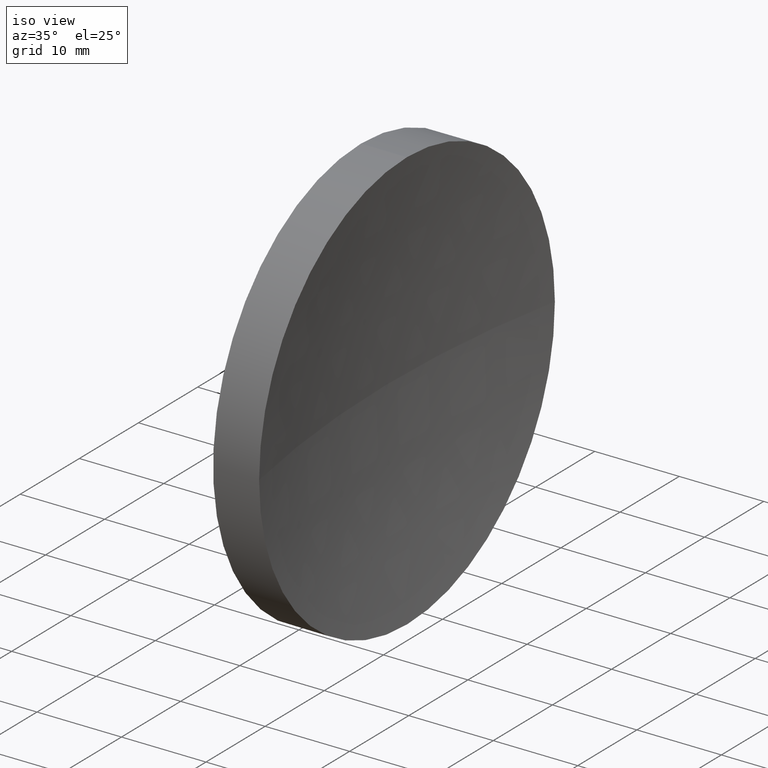
[diagram: clean part render]
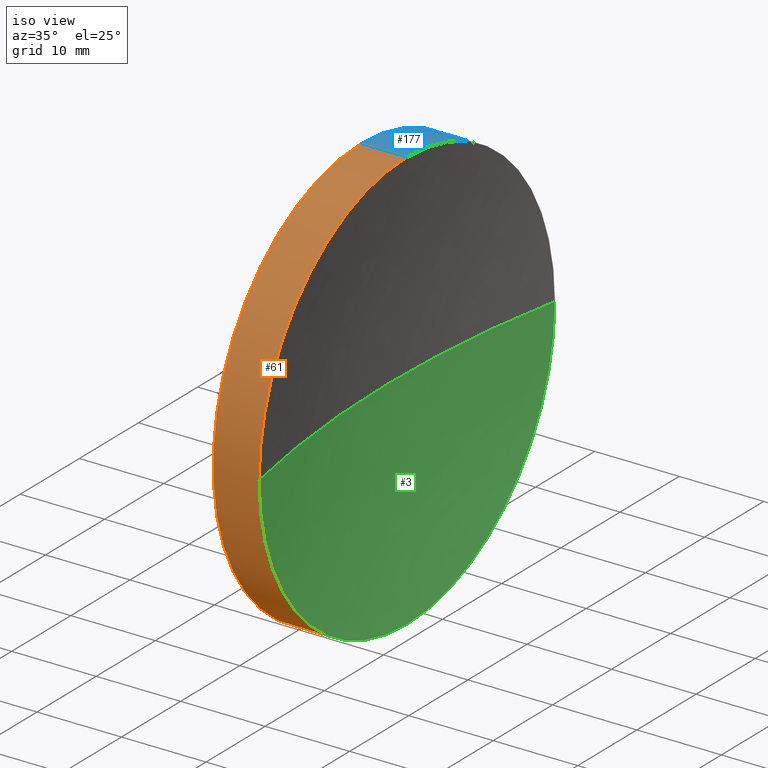
[diagram: same view with three faces highlighted in distinct colors, each labeled with its STEP entity id]
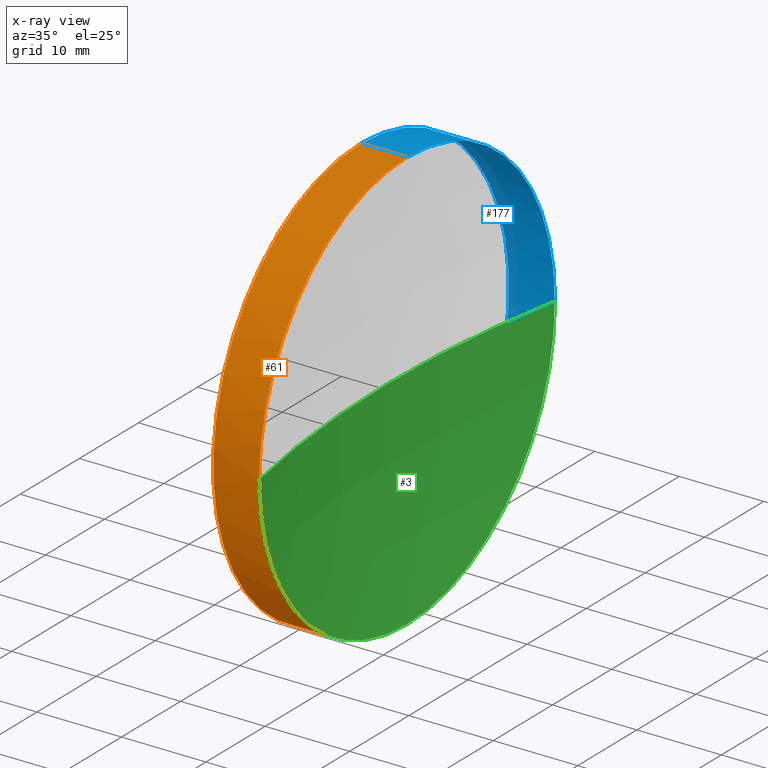
[diagram: x-ray of the same camera — body ghosted, the three highlighted faces saturated]
A machine part, iso view with three faces highlighted in distinct colors.
The next image is the same camera in x-ray (body ghosted, the three faces saturated) — at least one of them is partly hidden behind the body in this view.
Their STEP definitions:

[orange] entity #61 — the highlighted cylindrical surface (partial cylindrical patch) has radius 25 mm, axis along (-1, -0, -0).
#5 = EDGE_CURVE ( 'NONE', #178, #23, #133, .T. ) ;
#8 = FACE_OUTER_BOUND ( 'NONE', #156, .T. ) ;
#10 = CYLINDRICAL_SURFACE ( 'NONE', #149, 24.99999999999998600 ) ;
#13 = CARTESIAN_POINT ( 'NONE',  ( 113.7394371346435000, 65.15563045701519200, 24.99999999999999300 ) ) ;
#14 = ORIENTED_EDGE ( 'NONE', *, *, #129, .T. ) ;
#16 = DIRECTION ( 'NONE',  ( -1.000000000000000000, -0.0000000000000000000, -0.0000000000000000000 ) ) ;
#18 = AXIS2_PLACEMENT_3D ( 'NONE', #35, #63, #175 ) ;
#20 = CIRCLE ( 'NONE', #43, 24.99999999999998200 ) ;
#21 = EDGE_CURVE ( 'NONE', #163, #178, #144, .T. ) ;
#23 = VERTEX_POINT ( 'NONE', #13 ) ;
#31 = DIRECTION ( 'NONE',  ( 0.0000000000000000000, 0.0000000000000000000, 1.000000000000000000 ) ) ;
#33 = AXIS2_PLACEMENT_3D ( 'NONE', #138, #102, #137 ) ;
#35 = CARTESIAN_POINT ( 'NONE',  ( 119.1804718391806000, 65.15563045701519200, 0.0000000000000000000 ) ) ;
#43 = AXIS2_PLACEMENT_3D ( 'NONE', #107, #130, #31 ) ;
#44 = DIRECTION ( 'NONE',  ( 0.0000000000000000000, 0.0000000000000000000, 1.000000000000000000 ) ) ;
#46 = ORIENTED_EDGE ( 'NONE', *, *, #5, .F. ) ;
#49 = CARTESIAN_POINT ( 'NONE',  ( 105.6218371238301200, 65.15563045701519200, 24.99999999999998600 ) ) ;
#50 = CARTESIAN_POINT ( 'NONE',  ( 119.1804718391806000, 65.15563045701519200, -24.99999999999998200 ) ) ;
#51 = ORIENTED_EDGE ( 'NONE', *, *, #169, .T. ) ;
#53 = ORIENTED_EDGE ( 'NONE', *, *, #66, .T. ) ;
#61 = ADVANCED_FACE ( 'NONE', ( #8 ), #10, .T. ) ;
#63 = DIRECTION ( 'NONE',  ( -1.000000000000000000, -0.0000000000000000000, -0.0000000000000000000 ) ) ;
#66 = EDGE_CURVE ( 'NONE', #131, #23, #116, .T. ) ;
#73 = DIRECTION ( 'NONE',  ( -1.000000000000000000, -0.0000000000000000000, -0.0000000000000000000 ) ) ;
#81 = ORIENTED_EDGE ( 'NONE', *, *, #21, .F. ) ;
#83 = DIRECTION ( 'NONE',  ( -1.000000000000000000, -0.0000000000000000000, -0.0000000000000000000 ) ) ;
#88 = CARTESIAN_POINT ( 'NONE',  ( 113.7394371346435000, 65.15563045701519200, -24.99999999999999300 ) ) ;
#93 = VERTEX_POINT ( 'NONE', #152 ) ;
#102 = DIRECTION ( 'NONE',  ( -1.000000000000000000, -0.0000000000000000000, -0.0000000000000000000 ) ) ;
#107 = CARTESIAN_POINT ( 'NONE',  ( 119.1804718391806000, 65.15563045701519200, 0.0000000000000000000 ) ) ;
#116 = LINE ( 'NONE', #49, #121 ) ;
#121 = VECTOR ( 'NONE', #73, 1000.000000000000000 ) ;
#125 = VECTOR ( 'NONE', #83, 1000.000000000000000 ) ;
#129 = EDGE_CURVE ( 'NONE', #163, #93, #20, .T. ) ;
#130 = DIRECTION ( 'NONE',  ( -1.000000000000000000, -0.0000000000000000000, -0.0000000000000000000 ) ) ;
#131 = VERTEX_POINT ( 'NONE', #167 ) ;
#133 = CIRCLE ( 'NONE', #33, 24.99999999999999300 ) ;
#137 = DIRECTION ( 'NONE',  ( 0.0000000000000000000, 0.0000000000000000000, 1.000000000000000000 ) ) ;
#138 = CARTESIAN_POINT ( 'NONE',  ( 113.7394371346435000, 65.15563045701519200, 0.0000000000000000000 ) ) ;
#144 = LINE ( 'NONE', #153, #125 ) ;
#149 = AXIS2_PLACEMENT_3D ( 'NONE', #186, #16, #44 ) ;
#152 = CARTESIAN_POINT ( 'NONE',  ( 119.1804718391806000, 40.15563045701522800, 0.0000000000000000000 ) ) ;
#153 = CARTESIAN_POINT ( 'NONE',  ( 105.6218371238301200, 65.15563045701519200, -24.99999999999998600 ) ) ;
#156 = EDGE_LOOP ( 'NONE', ( #81, #14, #51, #53, #46 ) ) ;
#163 = VERTEX_POINT ( 'NONE', #50 ) ;
#164 = CIRCLE ( 'NONE', #18, 24.99999999999998200 ) ;
#167 = CARTESIAN_POINT ( 'NONE',  ( 119.1804718391806000, 65.15563045701519200, 24.99999999999998200 ) ) ;
#169 = EDGE_CURVE ( 'NONE', #93, #131, #164, .T. ) ;
#175 = DIRECTION ( 'NONE',  ( 0.0000000000000000000, 0.0000000000000000000, 1.000000000000000000 ) ) ;
#178 = VERTEX_POINT ( 'NONE', #88 ) ;
#186 = CARTESIAN_POINT ( 'NONE',  ( 105.6218371238301200, 65.15563045701519200, 0.0000000000000000000 ) ) ;

[blue] entity #177 — the highlighted cylindrical surface (partial cylindrical patch) has radius 25 mm, axis along (-1, -0, -0).
#2 = FACE_OUTER_BOUND ( 'NONE', #151, .T. ) ;
#7 = DIRECTION ( 'NONE',  ( -1.000000000000000000, -0.0000000000000000000, -0.0000000000000000000 ) ) ;
#13 = CARTESIAN_POINT ( 'NONE',  ( 113.7394371346435000, 65.15563045701519200, 24.99999999999999300 ) ) ;
#15 = DIRECTION ( 'NONE',  ( 0.0000000000000000000, 0.0000000000000000000, 1.000000000000000000 ) ) ;
#21 = EDGE_CURVE ( 'NONE', #163, #178, #144, .T. ) ;
#22 = CIRCLE ( 'NONE', #92, 24.99999999999998200 ) ;
#23 = VERTEX_POINT ( 'NONE', #13 ) ;
#26 = CARTESIAN_POINT ( 'NONE',  ( 119.1804718391806000, 65.15563045701519200, 0.0000000000000000000 ) ) ;
#28 = ORIENTED_EDGE ( 'NONE', *, *, #21, .T. ) ;
#32 = DIRECTION ( 'NONE',  ( 0.0000000000000000000, 0.0000000000000000000, 1.000000000000000000 ) ) ;
#37 = ORIENTED_EDGE ( 'NONE', *, *, #112, .T. ) ;
#49 = CARTESIAN_POINT ( 'NONE',  ( 105.6218371238301200, 65.15563045701519200, 24.99999999999998600 ) ) ;
#50 = CARTESIAN_POINT ( 'NONE',  ( 119.1804718391806000, 65.15563045701519200, -24.99999999999998200 ) ) ;
#52 = ORIENTED_EDGE ( 'NONE', *, *, #72, .T. ) ;
#59 = DIRECTION ( 'NONE',  ( -1.000000000000000000, -0.0000000000000000000, -0.0000000000000000000 ) ) ;
#64 = CARTESIAN_POINT ( 'NONE',  ( 119.1804718391806000, 65.15563045701519200, 0.0000000000000000000 ) ) ;
#66 = EDGE_CURVE ( 'NONE', #131, #23, #116, .T. ) ;
#72 = EDGE_CURVE ( 'NONE', #97, #163, #181, .T. ) ;
#73 = DIRECTION ( 'NONE',  ( -1.000000000000000000, -0.0000000000000000000, -0.0000000000000000000 ) ) ;
#74 = DIRECTION ( 'NONE',  ( 0.0000000000000000000, 0.0000000000000000000, 1.000000000000000000 ) ) ;
#83 = DIRECTION ( 'NONE',  ( -1.000000000000000000, -0.0000000000000000000, -0.0000000000000000000 ) ) ;
#86 = CARTESIAN_POINT ( 'NONE',  ( 119.1804718391806000, 90.15563045701516400, 3.061616997868378300E-015 ) ) ;
#87 = ORIENTED_EDGE ( 'NONE', *, *, #176, .F. ) ;
#88 = CARTESIAN_POINT ( 'NONE',  ( 113.7394371346435000, 65.15563045701519200, -24.99999999999999300 ) ) ;
#90 = DIRECTION ( 'NONE',  ( -1.000000000000000000, -0.0000000000000000000, -0.0000000000000000000 ) ) ;
#92 = AXIS2_PLACEMENT_3D ( 'NONE', #64, #90, #105 ) ;
#97 = VERTEX_POINT ( 'NONE', #86 ) ;
#105 = DIRECTION ( 'NONE',  ( 0.0000000000000000000, 0.0000000000000000000, 1.000000000000000000 ) ) ;
#112 = EDGE_CURVE ( 'NONE', #131, #97, #22, .T. ) ;
#116 = LINE ( 'NONE', #49, #121 ) ;
#121 = VECTOR ( 'NONE', #73, 1000.000000000000000 ) ;
#123 = ORIENTED_EDGE ( 'NONE', *, *, #66, .F. ) ;
#125 = VECTOR ( 'NONE', #83, 1000.000000000000000 ) ;
#128 = CARTESIAN_POINT ( 'NONE',  ( 113.7394371346435000, 65.15563045701519200, 0.0000000000000000000 ) ) ;
#131 = VERTEX_POINT ( 'NONE', #167 ) ;
#134 = AXIS2_PLACEMENT_3D ( 'NONE', #139, #7, #74 ) ;
#139 = CARTESIAN_POINT ( 'NONE',  ( 105.6218371238301200, 65.15563045701519200, 0.0000000000000000000 ) ) ;
#143 = AXIS2_PLACEMENT_3D ( 'NONE', #128, #157, #32 ) ;
#144 = LINE ( 'NONE', #153, #125 ) ;
#151 = EDGE_LOOP ( 'NONE', ( #52, #28, #87, #123, #37 ) ) ;
#153 = CARTESIAN_POINT ( 'NONE',  ( 105.6218371238301200, 65.15563045701519200, -24.99999999999998600 ) ) ;
#157 = DIRECTION ( 'NONE',  ( -1.000000000000000000, -0.0000000000000000000, -0.0000000000000000000 ) ) ;
#163 = VERTEX_POINT ( 'NONE', #50 ) ;
#167 = CARTESIAN_POINT ( 'NONE',  ( 119.1804718391806000, 65.15563045701519200, 24.99999999999998200 ) ) ;
#168 = CYLINDRICAL_SURFACE ( 'NONE', #134, 24.99999999999998600 ) ;
#176 = EDGE_CURVE ( 'NONE', #23, #178, #183, .T. ) ;
#177 = ADVANCED_FACE ( 'NONE', ( #2 ), #168, .T. ) ;
#178 = VERTEX_POINT ( 'NONE', #88 ) ;
#180 = AXIS2_PLACEMENT_3D ( 'NONE', #26, #59, #15 ) ;
#181 = CIRCLE ( 'NONE', #180, 24.99999999999998200 ) ;
#183 = CIRCLE ( 'NONE', #143, 24.99999999999999300 ) ;

[green] entity #3 — the highlighted spherical surface has radius 129.24 mm.
#3 = ADVANCED_FACE ( 'NONE', ( #9 ), #111, .F. ) ;
#9 = FACE_OUTER_BOUND ( 'NONE', #19, .T. ) ;
#11 = ORIENTED_EDGE ( 'NONE', *, *, #84, .T. ) ;
#15 = DIRECTION ( 'NONE',  ( 0.0000000000000000000, 0.0000000000000000000, 1.000000000000000000 ) ) ;
#19 = EDGE_LOOP ( 'NONE', ( #145, #11, #109, #75 ) ) ;
#20 = CIRCLE ( 'NONE', #43, 24.99999999999998200 ) ;
#25 = CIRCLE ( 'NONE', #120, 129.2399999999999800 ) ;
#26 = CARTESIAN_POINT ( 'NONE',  ( 119.1804718391806000, 65.15563045701519200, 0.0000000000000000000 ) ) ;
#31 = DIRECTION ( 'NONE',  ( 0.0000000000000000000, 0.0000000000000000000, 1.000000000000000000 ) ) ;
#40 = CIRCLE ( 'NONE', #80, 129.2399999999999800 ) ;
#43 = AXIS2_PLACEMENT_3D ( 'NONE', #107, #130, #31 ) ;
#45 = DIRECTION ( 'NONE',  ( 0.0000000000000000000, -1.000000000000000000, 0.0000000000000000000 ) ) ;
#47 = CARTESIAN_POINT ( 'NONE',  ( 116.7394371346435000, 65.15563045701517800, 0.0000000000000000000 ) ) ;
#50 = CARTESIAN_POINT ( 'NONE',  ( 119.1804718391806000, 65.15563045701519200, -24.99999999999998200 ) ) ;
#59 = DIRECTION ( 'NONE',  ( -1.000000000000000000, -0.0000000000000000000, -0.0000000000000000000 ) ) ;
#70 = DIRECTION ( 'NONE',  ( 0.0000000000000000000, -1.000000000000000000, -1.224646799147353200E-016 ) ) ;
#72 = EDGE_CURVE ( 'NONE', #97, #163, #181, .T. ) ;
#75 = ORIENTED_EDGE ( 'NONE', *, *, #129, .F. ) ;
#76 = CARTESIAN_POINT ( 'NONE',  ( 245.9794371346434900, 65.15563045701519200, 0.0000000000000000000 ) ) ;
#77 = DIRECTION ( 'NONE',  ( -1.000000000000000000, 0.0000000000000000000, 0.0000000000000000000 ) ) ;
#80 = AXIS2_PLACEMENT_3D ( 'NONE', #113, #100, #70 ) ;
#84 = EDGE_CURVE ( 'NONE', #97, #85, #40, .T. ) ;
#85 = VERTEX_POINT ( 'NONE', #47 ) ;
#86 = CARTESIAN_POINT ( 'NONE',  ( 119.1804718391806000, 90.15563045701516400, 3.061616997868378300E-015 ) ) ;
#93 = VERTEX_POINT ( 'NONE', #152 ) ;
#94 = AXIS2_PLACEMENT_3D ( 'NONE', #155, #115, #45 ) ;
#97 = VERTEX_POINT ( 'NONE', #86 ) ;
#100 = DIRECTION ( 'NONE',  ( 0.0000000000000000000, -1.224646799147353200E-016, 1.000000000000000000 ) ) ;
#107 = CARTESIAN_POINT ( 'NONE',  ( 119.1804718391806000, 65.15563045701519200, 0.0000000000000000000 ) ) ;
#109 = ORIENTED_EDGE ( 'NONE', *, *, #124, .F. ) ;
#111 = SPHERICAL_SURFACE ( 'NONE', #94, 129.2399999999999800 ) ;
#113 = CARTESIAN_POINT ( 'NONE',  ( 245.9794371346434900, 65.15563045701519200, 0.0000000000000000000 ) ) ;
#115 = DIRECTION ( 'NONE',  ( 0.0000000000000000000, 0.0000000000000000000, 1.000000000000000000 ) ) ;
#120 = AXIS2_PLACEMENT_3D ( 'NONE', #76, #159, #77 ) ;
#124 = EDGE_CURVE ( 'NONE', #93, #85, #25, .T. ) ;
#129 = EDGE_CURVE ( 'NONE', #163, #93, #20, .T. ) ;
#130 = DIRECTION ( 'NONE',  ( -1.000000000000000000, -0.0000000000000000000, -0.0000000000000000000 ) ) ;
#145 = ORIENTED_EDGE ( 'NONE', *, *, #72, .F. ) ;
#152 = CARTESIAN_POINT ( 'NONE',  ( 119.1804718391806000, 40.15563045701522800, 0.0000000000000000000 ) ) ;
#155 = CARTESIAN_POINT ( 'NONE',  ( 245.9794371346434900, 65.15563045701519200, 0.0000000000000000000 ) ) ;
#159 = DIRECTION ( 'NONE',  ( 0.0000000000000000000, 0.0000000000000000000, -1.000000000000000000 ) ) ;
#163 = VERTEX_POINT ( 'NONE', #50 ) ;
#180 = AXIS2_PLACEMENT_3D ( 'NONE', #26, #59, #15 ) ;
#181 = CIRCLE ( 'NONE', #180, 24.99999999999998200 ) ;